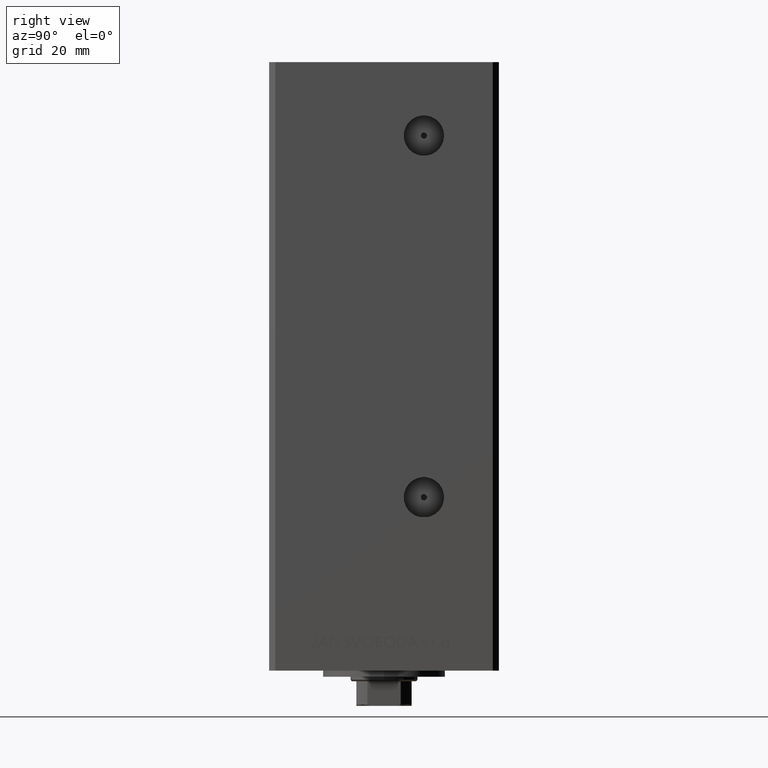
[diagram: clean part render]
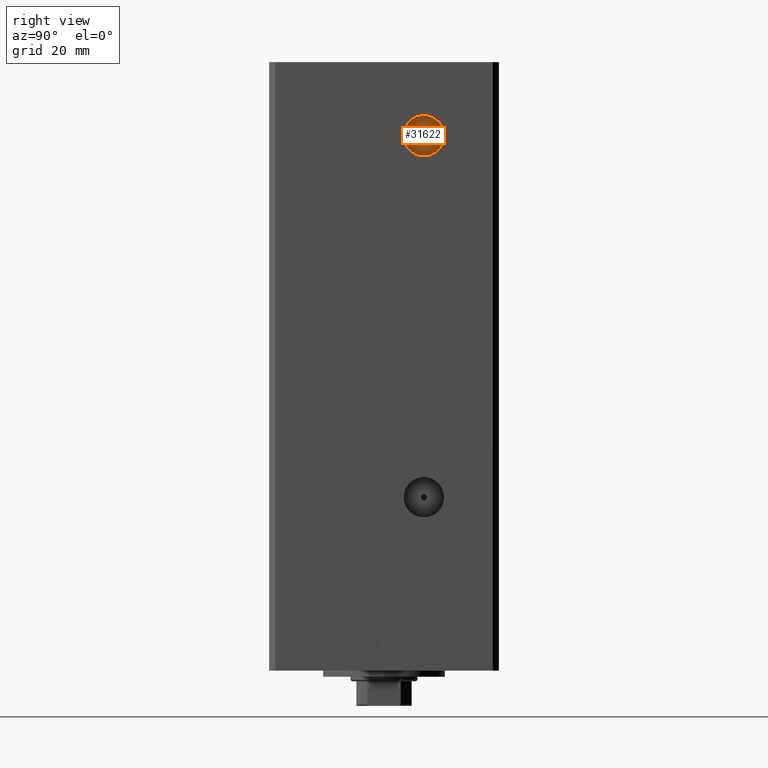
[diagram: same view with one face highlighted and labeled with its STEP entity id]
A machine part, right view. The second image highlights one B-rep face of the part: STEP entity #31622.
In plain terms, the highlighted planar face has unit normal (1, -0, 0).
Its self-contained STEP definition (entity closure, byte-faithful):
#542 = DIRECTION ( 'NONE',  ( 0.000000000000000000, 1.000000000000000000, 0.000000000000000000 ) ) ;
#1708 = VERTEX_POINT ( 'NONE', #40189 ) ;
#2231 = DIRECTION ( 'NONE',  ( 1.000000000000000000, -2.275047181608927644E-16, 0.000000000000000000 ) ) ;
#3780 = DIRECTION ( 'NONE',  ( 0.000000000000000000, 1.000000000000000000, 0.000000000000000000 ) ) ;
#4665 = EDGE_CURVE ( 'NONE', #42439, #23721, #16442, .T. ) ;
#6428 = PLANE ( 'NONE',  #47790 ) ;
#6430 = EDGE_LOOP ( 'NONE', ( #15418, #13356 ) ) ;
#8221 = EDGE_CURVE ( 'NONE', #23721, #42439, #34560, .T. ) ;
#8861 = CARTESIAN_POINT ( 'NONE',  ( 29.50000000000000000, 14.00000000000000178, 159.5000000000000000 ) ) ;
#11057 = DIRECTION ( 'NONE',  ( 0.000000000000000000, 1.000000000000000000, 0.000000000000000000 ) ) ;
#11679 = AXIS2_PLACEMENT_3D ( 'NONE', #11759, #42135, #542 ) ;
#11690 = CIRCLE ( 'NONE', #39528, 0.9999999999999991118 ) ;
#11759 = CARTESIAN_POINT ( 'NONE',  ( 29.50000000000000000, 13.00000000000000355, 159.5000000000000000 ) ) ;
#13082 = AXIS2_PLACEMENT_3D ( 'NONE', #24175, #2231, #39365 ) ;
#13356 = ORIENTED_EDGE ( 'NONE', *, *, #17633, .F. ) ;
#13655 = AXIS2_PLACEMENT_3D ( 'NONE', #30441, #18480, #3780 ) ;
#14142 = CARTESIAN_POINT ( 'NONE',  ( 29.50000000000000000, 13.00000000000000355, 159.5000000000000000 ) ) ;
#15418 = ORIENTED_EDGE ( 'NONE', *, *, #46723, .F. ) ;
#16442 = CIRCLE ( 'NONE', #11679, 6.580000000000014282 ) ;
#17633 = EDGE_CURVE ( 'NONE', #1708, #39268, #11690, .T. ) ;
#18480 = DIRECTION ( 'NONE',  ( 1.000000000000000000, -2.275047181608927644E-16, 0.000000000000000000 ) ) ;
#18782 = CARTESIAN_POINT ( 'NONE',  ( 29.50000000000000000, 13.00000000000000355, 159.5000000000000000 ) ) ;
#21624 = CIRCLE ( 'NONE', #13655, 0.9999999999999991118 ) ;
#22017 = DIRECTION ( 'NONE',  ( 1.000000000000000000, -2.275047181608927644E-16, 0.000000000000000000 ) ) ;
#22474 = ORIENTED_EDGE ( 'NONE', *, *, #8221, .T. ) ;
#23721 = VERTEX_POINT ( 'NONE', #37787 ) ;
#24175 = CARTESIAN_POINT ( 'NONE',  ( 29.50000000000000000, 13.00000000000000355, 159.5000000000000000 ) ) ;
#25931 = EDGE_LOOP ( 'NONE', ( #44455, #22474 ) ) ;
#28851 = FACE_BOUND ( 'NONE', #6430, .T. ) ;
#29095 = FACE_OUTER_BOUND ( 'NONE', #25931, .T. ) ;
#30441 = CARTESIAN_POINT ( 'NONE',  ( 29.50000000000000000, 13.00000000000000355, 159.5000000000000000 ) ) ;
#31622 = ADVANCED_FACE ( 'NONE', ( #28851, #29095 ), #6428, .T. ) ;
#34560 = CIRCLE ( 'NONE', #13082, 6.580000000000014282 ) ;
#37787 = CARTESIAN_POINT ( 'NONE',  ( 29.50000000000000000, 6.419999999999987494, 159.5000000000000000 ) ) ;
#39268 = VERTEX_POINT ( 'NONE', #8861 ) ;
#39365 = DIRECTION ( 'NONE',  ( 0.000000000000000000, 1.000000000000000000, 0.000000000000000000 ) ) ;
#39528 = AXIS2_PLACEMENT_3D ( 'NONE', #18782, #22017, #11057 ) ;
#39583 = DIRECTION ( 'NONE',  ( 2.275047181608927644E-16, 1.000000000000000000, 0.000000000000000000 ) ) ;
#40189 = CARTESIAN_POINT ( 'NONE',  ( 29.50000000000000000, 12.00000000000000355, 159.5000000000000000 ) ) ;
#42135 = DIRECTION ( 'NONE',  ( 1.000000000000000000, -2.275047181608927644E-16, 0.000000000000000000 ) ) ;
#42439 = VERTEX_POINT ( 'NONE', #45732 ) ;
#44289 = DIRECTION ( 'NONE',  ( 1.000000000000000000, -2.275047181608927644E-16, 0.000000000000000000 ) ) ;
#44455 = ORIENTED_EDGE ( 'NONE', *, *, #4665, .T. ) ;
#45732 = CARTESIAN_POINT ( 'NONE',  ( 29.50000000000000000, 19.58000000000001606, 159.5000000000000000 ) ) ;
#46723 = EDGE_CURVE ( 'NONE', #39268, #1708, #21624, .T. ) ;
#47790 = AXIS2_PLACEMENT_3D ( 'NONE', #14142, #44289, #39583 ) ;